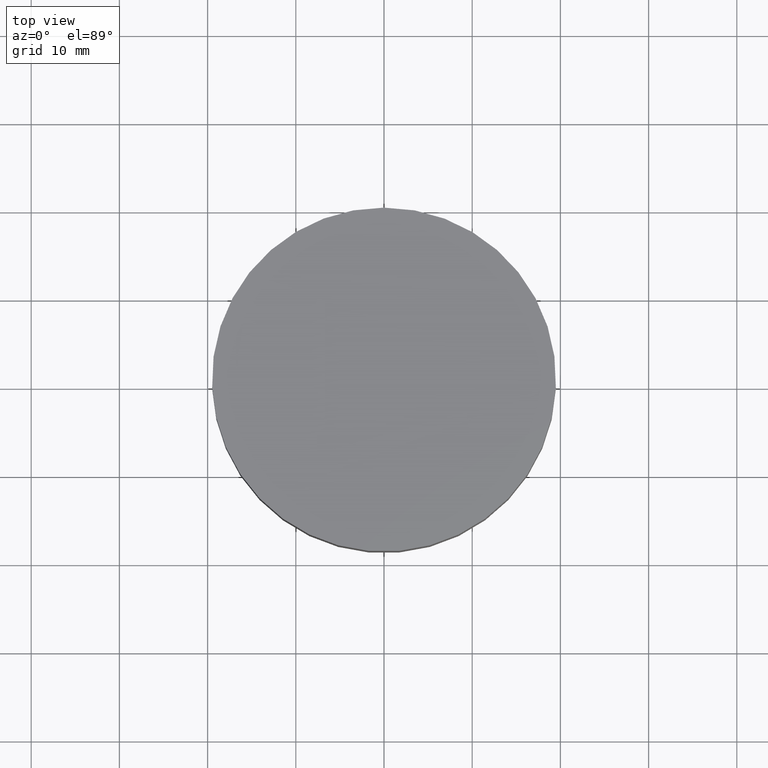
[diagram: clean part render]
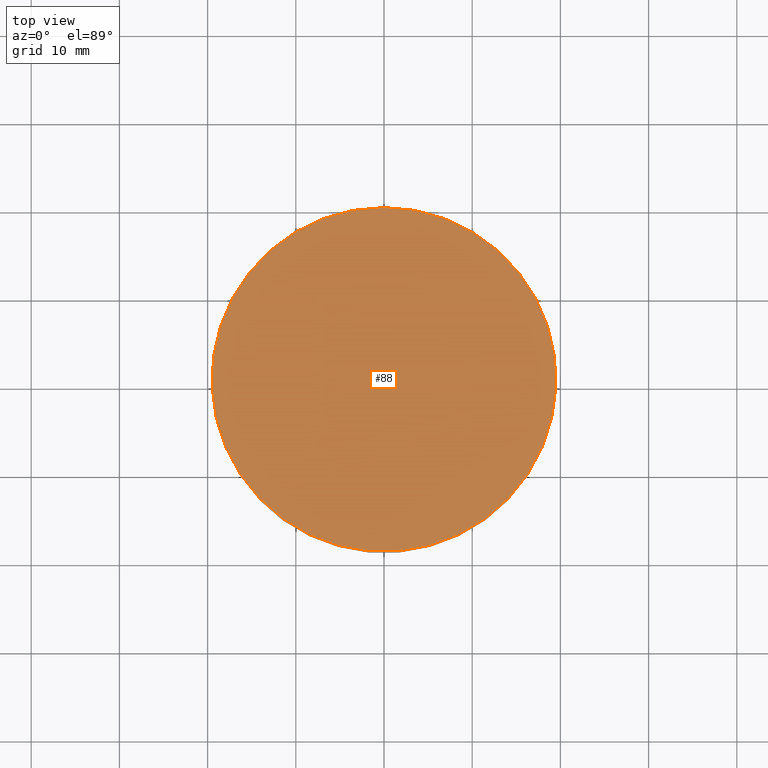
[diagram: same view with one face highlighted and labeled with its STEP entity id]
A machine part, top view. The second image highlights one B-rep face of the part: STEP entity #88.
In plain terms, the highlighted planar face has unit normal (-0, -0, 1).
Its self-contained STEP definition (entity closure, byte-faithful):
#88=ADVANCED_FACE('',(#128),#129,.T.);
#128=FACE_OUTER_BOUND('',#168,.T.);
#129=PLANE('',#169);
#168=EDGE_LOOP('',(#234));
#169=AXIS2_PLACEMENT_3D('',#235,#236,#237);
#234=ORIENTED_EDGE('',*,*,#250,.T.);
#235=CARTESIAN_POINT('',(-1.20178028529764E-031,9.75,1.19403062916867E-015));
#236=DIRECTION('',(-6.12323399573677E-017,-1.22464679914735E-016,1.0));
#237=DIRECTION('',(-1.23259516440783E-032,1.0,1.22464679914735E-016));
#250=EDGE_CURVE('',#275,#275,#276,.T.);
#275=VERTEX_POINT('',#301);
#276=CIRCLE('',#302,19.5);
#301=CARTESIAN_POINT('',(-2.40356057059527E-031,19.5,2.38806125833734E-015));
#302=AXIS2_PLACEMENT_3D('',#339,#340,#341);
#339=CARTESIAN_POINT('',(0.0,0.0,0.0));
#340=DIRECTION('',(-6.12323399573677E-017,-1.22464679914735E-016,1.0));
#341=DIRECTION('',(-1.23259516440783E-032,1.0,1.22464679914735E-016));